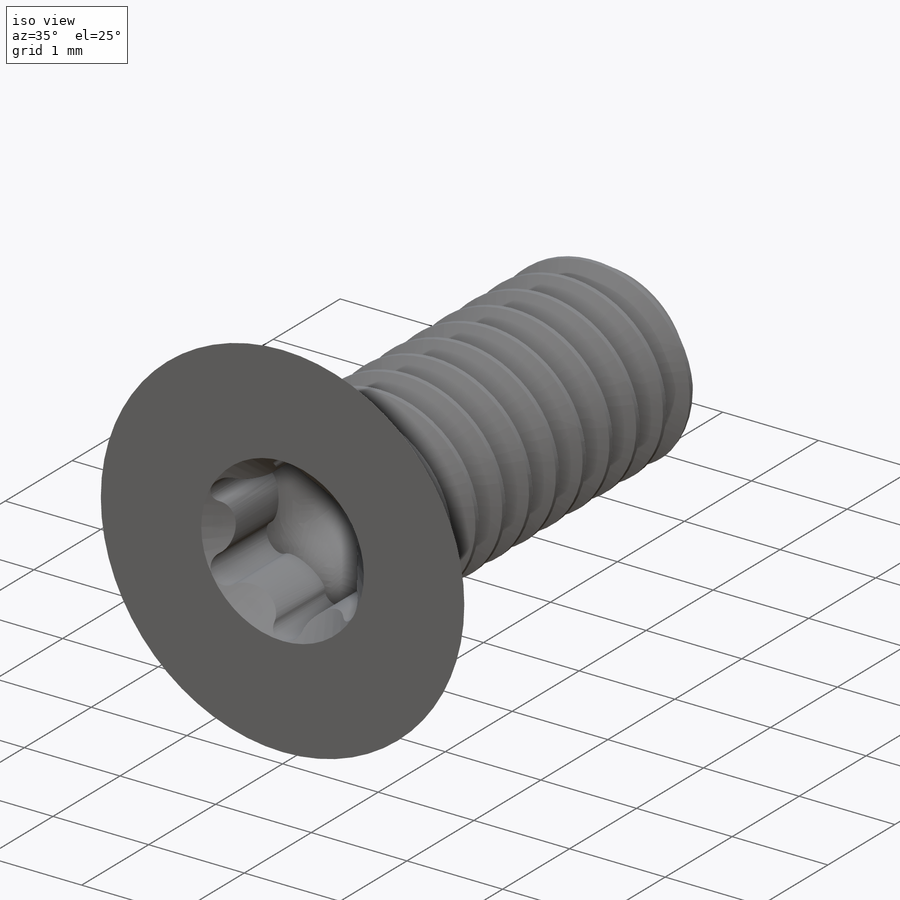
[diagram: iso view]
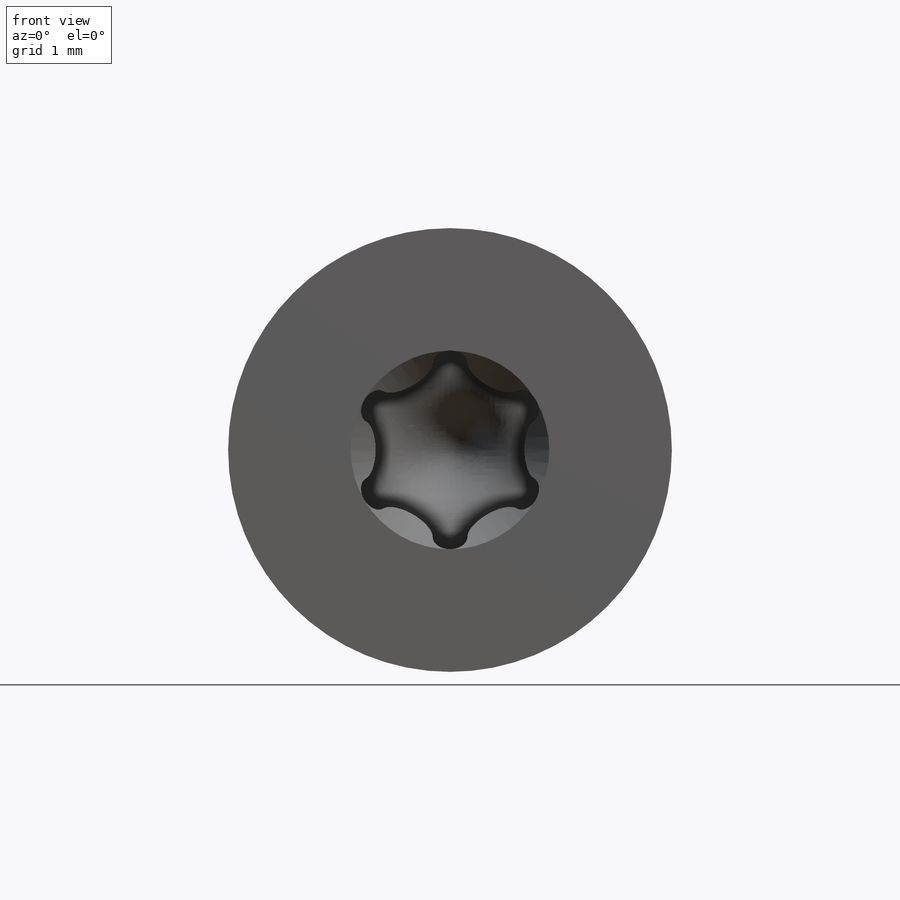
[diagram: front view]
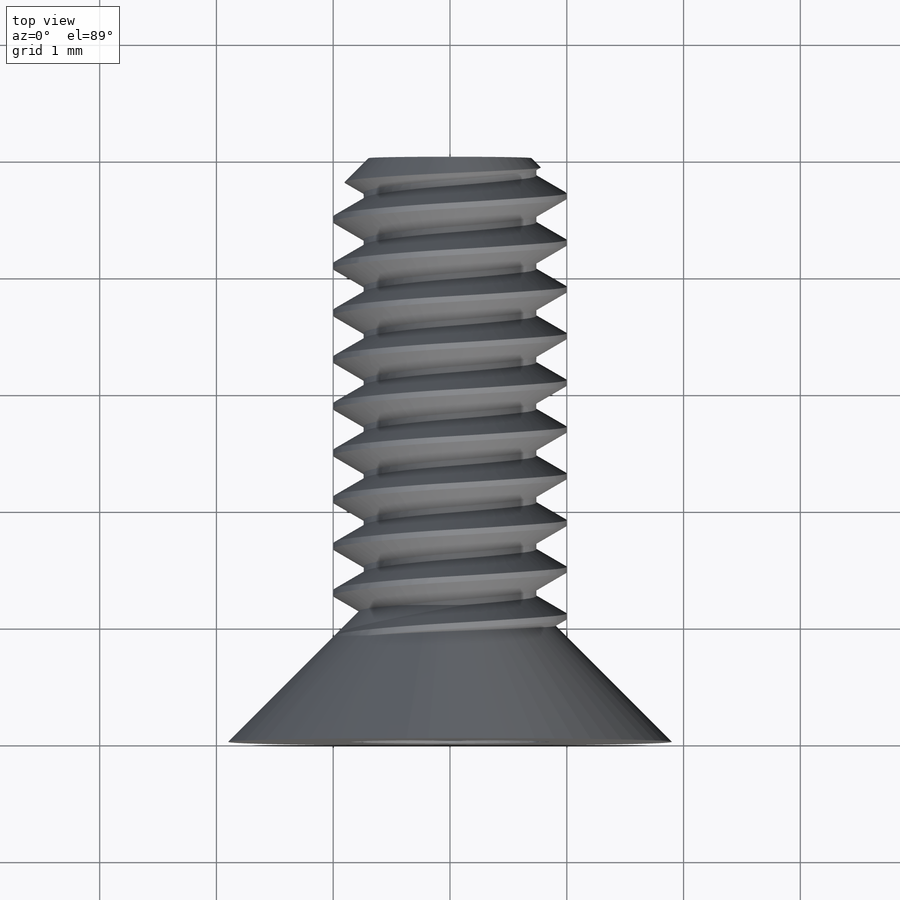
[diagram: top view]
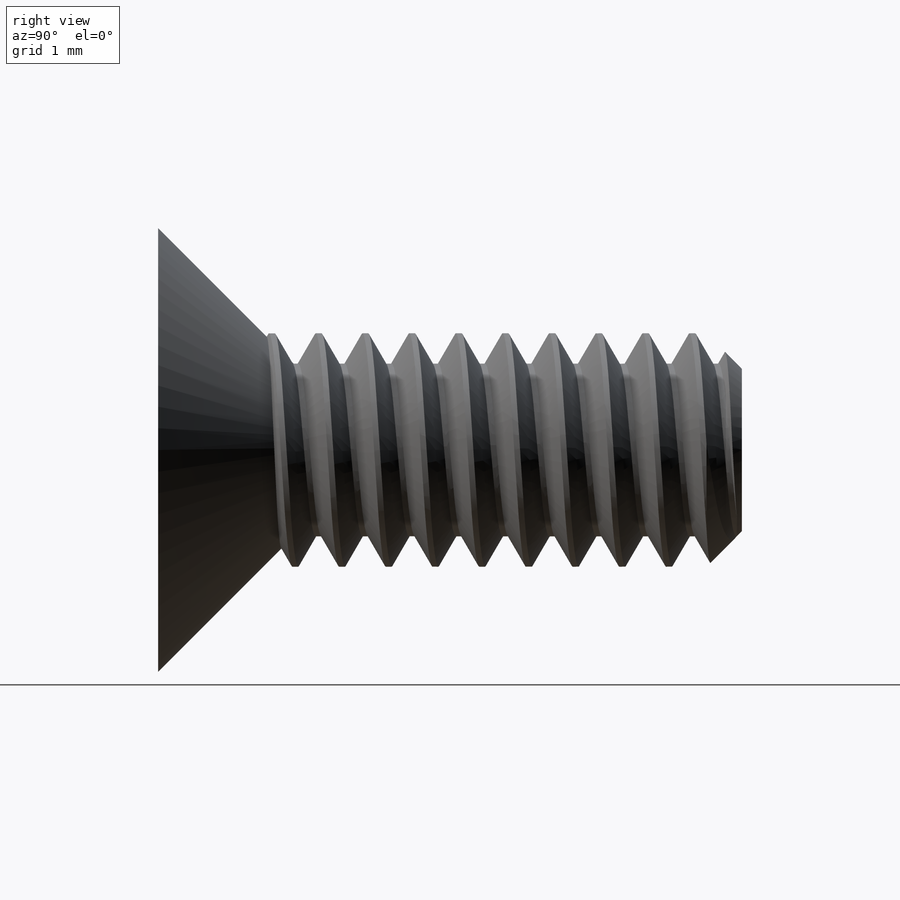
[diagram: right view]
SOLIDWORKS PART (.sldprt)
format: sldprt  version: not decoded by parser v0  size: 780,288 bytes
history: native  units: mm
features: sketch x10, cut_extrude x3, extrude x2, revolve x2, material x1, helix x1, sweep x1, plane x1, pattern_circular x1, dome x1 (+15 scaffold rows collapsed; 1 parser-record rows omitted)
feature tree (39):
  scaffold x15  (default folders/planes/origin — collapsed)
  material  "Material <not specified>"
  sketch  "Sketch1"  dims[Length=5.0mm Thread OD=2.0mm Head Diameter=3.8mm Head Height=1.2mm D2=~6.116541mm Countersink Angle=90.0deg Thread Pitch=0.4mm]
  sketch  "Sketch2"  dims[Torx Diameter=1.7mm]
  extrude  "Boss-Extrude1"  [1 undecoded]
  sketch  "Sketch3"  dims[D1=0.0mm]
  helix  "Helix/Spiral1"  Pitch=5mm
  sketch  "Sketch4"  dims[D1=0.4mm D2=0.05mm]
  sweep  "Cut-Sweep1"
  sketch  "Sketch5"
  cut_extrude  "Cut-Extrude1"  [1 undecoded]
  sketch  "Sketch6"
  revolve  "Revolve1"  Angle=360deg
  sketch  "Sketch7"
  revolve  "Revolve2"  Angle=360deg
  parser-record x1  (decoder bookkeeping rows leaked as tree rows — omitted from the tree; the rows remain in map.json)
  plane  "Plane1"  Offset=38.1mm Minimum Thread Length=38.1mm
  sketch  "Sketch8"  dims[D1=0.0mm]
  extrude  "Boss-Extrude2"  [1 undecoded]
  sketch  "Sketch9"  dims[c1.D2=1.4875mm c1.D3=1.275mm c1.D1=~1.486528mm c2.D1=30.0deg c3.D1=1.5875mm c4.D1=30.0deg]
  cut_extrude  "Cut-Extrude2"  Depth=0.85mm
  pattern_circular  "CirPattern1"  Count=6 Angle=360deg
  dome  "Dome1"
  sketch  "Sketch10"
  cut_extrude  "Cut-Extrude3"  [1 undecoded]
decode coverage: 11 of 21 modeling features carry decoded parameters
note: ~ marks probable driven/reference dimensions
note: 4 parameter values undecoded
summary: no parameter record found for 4 features
note: suppression state not decoded; provenance and decode notes live in map.json
